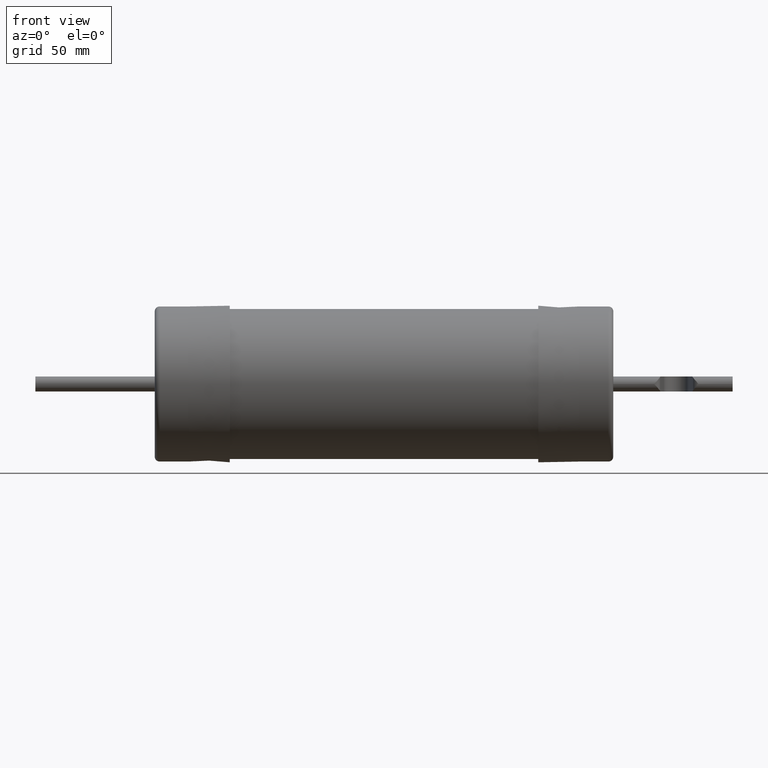
[diagram: clean part render]
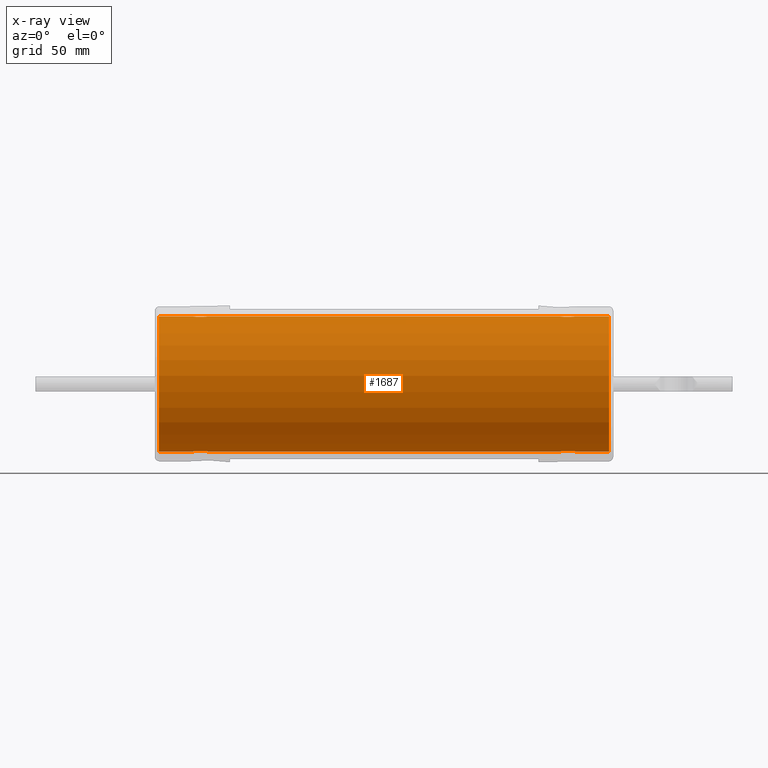
[diagram: x-ray — body ghosted, one internal face saturated and labeled with its STEP entity id]
A machine part, front view, then the same camera in x-ray: the body is ghosted and one INTERNAL B-rep face — a face not visible from any outside direction — is saturated and labeled: STEP entity #1687.
In plain terms, the highlighted cylindrical surface (bore or boss wall) has radius 28.575 mm, axis along (-1, -0, -0).
Its self-contained STEP definition (entity closure, byte-faithful):
#2 = CARTESIAN_POINT ( 'NONE',  ( 3.187000000000000300, 0.008264929551605784300, 1.125000000000000200 ) ) ;
#8 = CARTESIAN_POINT ( 'NONE',  ( 3.186999999999998900, 0.0000000000000000000, -1.125000000000000200 ) ) ;
#10 = CARTESIAN_POINT ( 'NONE',  ( -3.161355643792259000, 0.07628700763352130900, -1.122430944574689400 ) ) ;
#19 = CARTESIAN_POINT ( 'NONE',  ( 3.186188273916955800, 0.01643745976978575400, 1.124908949798906000 ) ) ;
#25 = CARTESIAN_POINT ( 'NONE',  ( 3.070145480266786000, -0.1250076555945823200, -1.118033132828778900 ) ) ;
#42 = CARTESIAN_POINT ( 'NONE',  ( 3.170486873554720000, 0.06262820716618042200, -1.123276015999122200 ) ) ;
#45 = CARTESIAN_POINT ( 'NONE',  ( -2.967859463995469800, -0.08263737611486492200, 1.121975691098800800 ) ) ;
#79 = CARTESIAN_POINT ( 'NONE',  ( -3.053854519733211900, 0.1250076555945823200, 1.118033132828778900 ) ) ;
#83 = ORIENTED_EDGE ( 'NONE', *, *, #484, .F. ) ;
#89 = CARTESIAN_POINT ( 'NONE',  ( -2.937000000000000700, 0.008264929551605784300, 1.125000000000000200 ) ) ;
#105 = CARTESIAN_POINT ( 'NONE',  ( -3.156187746755288300, -0.08259377650767590900, 1.121979270301073400 ) ) ;
#107 = CARTESIAN_POINT ( 'NONE',  ( -2.937000000000000300, 0.008264929551605789500, -1.125000000000000400 ) ) ;
#115 = EDGE_LOOP ( 'NONE', ( #4361 ) ) ;
#140 = CARTESIAN_POINT ( 'NONE',  ( 2.962604450216541600, -0.07624331799335301600, -1.122434334632148100 ) ) ;
#178 = CARTESIAN_POINT ( 'NONE',  ( 3.183009440676321000, 0.03237459969698097000, -1.124562487525537600 ) ) ;
#182 = CARTESIAN_POINT ( 'NONE',  ( -3.180620022544832900, -0.04025645766893276600, -1.124304730132168700 ) ) ;
#204 = CARTESIAN_POINT ( 'NONE',  ( -3.186175986786401900, -0.01649589605271852700, 1.124907613240619700 ) ) ;
#229 = CIRCLE ( 'NONE', #2546, 1.125000000000000200 ) ;
#234 = CARTESIAN_POINT ( 'NONE',  ( -3.102209569292360600, 0.1186394266720119400, -1.118731244855595500 ) ) ;
#271 = CARTESIAN_POINT ( 'NONE',  ( -3.006649359693871000, -0.1123763457502511300, -1.119377715608965500 ) ) ;
#287 = CARTESIAN_POINT ( 'NONE',  ( -2.937000000000000700, 2.667820306312757000E-018, -1.125000000000000400 ) ) ;
#288 = CARTESIAN_POINT ( 'NONE',  ( -2.979446898618952400, 0.09421448581475419500, 1.121062878079628800 ) ) ;
#303 = CARTESIAN_POINT ( 'NONE',  ( -3.094414638714150000, -0.1210005264207946200, 1.118475055215242300 ) ) ;
#316 = CARTESIAN_POINT ( 'NONE',  ( -2.953588908035345500, 0.06276584778618919700, 1.123268541818021300 ) ) ;
#318 = CARTESIAN_POINT ( 'NONE',  ( 2.949672628498397800, -0.05544975341774064500, 1.123658175103429800 ) ) ;
#319 = CARTESIAN_POINT ( 'NONE',  ( -2.937000000000000700, 2.667820306312757000E-018, -1.125000000000000400 ) ) ;
#340 = CARTESIAN_POINT ( 'NONE',  ( 3.144617473756183400, -0.09415800274281756200, 1.121067641967810100 ) ) ;
#374 = CARTESIAN_POINT ( 'NONE',  ( -2.953513126445280100, -0.06262820716618042200, 1.123276015999122200 ) ) ;
#382 = CARTESIAN_POINT ( 'NONE',  ( -3.174395605341360200, 0.05530388804176605800, 1.123665069559912000 ) ) ;
#400 = CARTESIAN_POINT ( 'NONE',  ( -3.144515552110087600, -0.09425628475918991500, 1.121059752058972000 ) ) ;
#408 = CARTESIAN_POINT ( 'NONE',  ( 3.117401467460331400, 0.1123473848063987500, -1.119380583587238800 ) ) ;
#415 = CARTESIAN_POINT ( 'NONE',  ( 2.999337395341455700, 0.1084650460285821300, -1.119768259758879400 ) ) ;
#455 = AXIS2_PLACEMENT_3D ( 'NONE', #2968, #2892, #1851 ) ;
#484 = EDGE_CURVE ( 'NONE', #3053, #3053, #3032, .T. ) ;
#515 = CARTESIAN_POINT ( 'NONE',  ( 3.138121789061683900, -0.09948446745432401600, -1.120601860584433000 ) ) ;
#541 = CARTESIAN_POINT ( 'NONE',  ( -3.174395605341360200, -0.05530388804176605800, -1.123665069559912000 ) ) ;
#558 = CARTESIAN_POINT ( 'NONE',  ( -3.182971074714431300, 0.03252367389140872100, -1.124558341550093000 ) ) ;
#565 = CARTESIAN_POINT ( 'NONE',  ( -2.962583939425441800, -0.07621116037932940100, 1.122436260767330400 ) ) ;
#572 = CARTESIAN_POINT ( 'NONE',  ( -3.070090097158386200, 0.1250044718708923100, -1.118033488779606200 ) ) ;
#575 = CARTESIAN_POINT ( 'NONE',  ( 3.102363490093071900, 0.1185834985868680100, -1.118737136081502800 ) ) ;
#612 = ORIENTED_EDGE ( 'NONE', *, *, #2975, .F. ) ;
#630 = CARTESIAN_POINT ( 'NONE',  ( -3.029734393478947100, -0.1210385460313865200, -1.118470922301289200 ) ) ;
#641 = CARTESIAN_POINT ( 'NONE',  ( -3.117549588859898100, 0.1122779461384894500, 1.119387625304711700 ) ) ;
#672 = CARTESIAN_POINT ( 'NONE',  ( 3.094480237569013700, 0.1209864652158193400, -1.118476592445989400 ) ) ;
#682 = CARTESIAN_POINT ( 'NONE',  ( -3.070090097158386200, -0.1250044718708923100, 1.118033488779606200 ) ) ;
#688 = CARTESIAN_POINT ( 'NONE',  ( 3.182955272507534500, 0.03259968580805224600, 1.124556621921092300 ) ) ;
#690 = CARTESIAN_POINT ( 'NONE',  ( 3.124667522529990500, -0.1084680400694198200, 1.119768163508242400 ) ) ;
#696 = CARTESIAN_POINT ( 'NONE',  ( 3.078278682987122500, -0.1242030735117622300, -1.118123933286968100 ) ) ;
#720 = CARTESIAN_POINT ( 'NONE',  ( 3.187000000000000300, -2.667820306312757000E-018, 1.125000000000000400 ) ) ;
#767 = CARTESIAN_POINT ( 'NONE',  ( -2.937000000000000700, -2.667820306312757000E-018, 1.125000000000000400 ) ) ;
#793 = CARTESIAN_POINT ( 'NONE',  ( 3.144617473756183400, 0.09415800274281756200, -1.121067641967810100 ) ) ;
#840 = EDGE_LOOP ( 'NONE', ( #4528 ) ) ;
#848 = CARTESIAN_POINT ( 'NONE',  ( 2.985798931559820800, -0.09942165458867963100, 1.120607405103259500 ) ) ;
#849 = CARTESIAN_POINT ( 'NONE',  ( -3.045657792958803300, 0.1241999310264740400, -1.118124317662409600 ) ) ;
#856 = CARTESIAN_POINT ( 'NONE',  ( 3.124531545484079400, -0.1085425808334890300, -1.119760776842968300 ) ) ;
#864 = CARTESIAN_POINT ( 'NONE',  ( 3.029585361285849200, -0.1210005264207946200, 1.118475055215242300 ) ) ;
#869 = CARTESIAN_POINT ( 'NONE',  ( 3.187000000000000300, 0.008264929551605789500, -1.125000000000000400 ) ) ;
#871 = CARTESIAN_POINT ( 'NONE',  ( 2.985798931559820800, 0.09942165458867963100, -1.120607405103259500 ) ) ;
#897 = CARTESIAN_POINT ( 'NONE',  ( -2.943452328758939400, 0.04046860805192440500, 1.124297064501512000 ) ) ;
#908 = EDGE_LOOP ( 'NONE', ( #2147 ) ) ;
#933 = CARTESIAN_POINT ( 'NONE',  ( -3.070378774219989700, -0.1249922355532565600, -1.118034856841049600 ) ) ;
#969 = EDGE_CURVE ( 'NONE', #2953, #2953, #3259, .T. ) ;
#1010 = CARTESIAN_POINT ( 'NONE',  ( -3.186175986786401900, 0.01649589605271852700, -1.124907613240619700 ) ) ;
#1027 = CARTESIAN_POINT ( 'NONE',  ( 3.045498057948743400, 0.1241735659675538800, 1.118127231060569700 ) ) ;
#1039 = CARTESIAN_POINT ( 'NONE',  ( -3.124662604658546200, -0.1084650460285821300, 1.119768259758879400 ) ) ;
#1043 = CARTESIAN_POINT ( 'NONE',  ( 2.943396375302103100, -0.04031493211041937300, 1.124302928876284000 ) ) ;
#1053 = CARTESIAN_POINT ( 'NONE',  ( 3.102363490093071900, -0.1185834985868680100, 1.118737136081502800 ) ) ;
#1057 = FACE_BOUND ( 'NONE', #3589, .T. ) ;
#1068 = CARTESIAN_POINT ( 'NONE',  ( 2.999277973686156300, -0.1084325161558754900, -1.119771485396767700 ) ) ;
#1082 = CARTESIAN_POINT ( 'NONE',  ( 3.750000000000000000, 0.0000000000000000000, -1.125000000000000200 ) ) ;
#1086 = CARTESIAN_POINT ( 'NONE',  ( 3.102207630603985400, -0.1186401403728588900, -1.118731169843065800 ) ) ;
#1095 = CARTESIAN_POINT ( 'NONE',  ( 3.174298166400745500, 0.05550117491882267100, 1.123655292813150900 ) ) ;
#1136 = CARTESIAN_POINT ( 'NONE',  ( -3.182971074714431300, -0.03252367389140872100, 1.124558341550093000 ) ) ;
#1165 = CYLINDRICAL_SURFACE ( 'NONE', #455, 1.125000000000000200 ) ;
#1170 = CARTESIAN_POINT ( 'NONE',  ( 2.953590289495580600, -0.06275815608667531500, 1.123268599542026800 ) ) ;
#1183 = CARTESIAN_POINT ( 'NONE',  ( -3.183017037297695600, 0.03236556164670054100, 1.124563291934886900 ) ) ;
#1188 = CARTESIAN_POINT ( 'NONE',  ( -3.186214616297747600, 0.01622904787785724200, 1.124911883283803900 ) ) ;
#1191 = CARTESIAN_POINT ( 'NONE',  ( -3.078501942051257200, -0.1241735659675538800, -1.118127231060569700 ) ) ;
#1196 = CARTESIAN_POINT ( 'NONE',  ( 2.962644356207739400, -0.07628700763352130900, 1.122430944574689400 ) ) ;
#1231 = CARTESIAN_POINT ( 'NONE',  ( 3.187000000000000300, 2.667820306312757000E-018, -1.125000000000000400 ) ) ;
#1262 = CARTESIAN_POINT ( 'NONE',  ( 2.943396375302103100, 0.04031493211041937300, -1.124302928876284000 ) ) ;
#1291 = CARTESIAN_POINT ( 'NONE',  ( -3.117351000547919700, -0.1123761085021413000, 1.119377738752709700 ) ) ;
#1329 = CARTESIAN_POINT ( 'NONE',  ( 2.979283227754908400, 0.09407087198512108200, 1.121074991900731700 ) ) ;
#1331 = B_SPLINE_CURVE_WITH_KNOTS ( 'NONE', 3,
 ( #2214, #3217, #2639, #4081, #2272, #1380, #374, #565, #45, #1458, #3706, #3827, #2496, #2973, #4398, #3086, #2746, #682, #2757, #303, #3136, #1291, #1039, #4551, #400, #105, #2455, #2670, #3749, #4512, #1136, #204, #2243, #2601, #1188, #1183, #4387, #382, #1829, #1964, #2697, #3216, #2344, #4214, #641, #2276, #3025, #2049, #2226, #79, #1715, #2373, #3246, #3786, #4519, #2716, #288, #1675, #4442, #316, #3052, #897, #3886, #3872, #89, #767 ),
 .UNSPECIFIED., .T., .F.,
 ( 4, 2, 2, 2, 2, 2, 2, 2, 2, 2, 2, 2, 2, 2, 2, 2, 2, 2, 2, 2, 2, 2, 2, 2, 2, 2, 2, 2, 2, 2, 2, 2, 4 ),
 ( 0.0000000000000000000, 0.0006208117446907428600, 0.001241623489381485700, 0.001862435234072228800, 0.002483246978762971400, 0.003104058723453714300, 0.003724870468144457600, 0.004345682212835200000, 0.004966493957525942900, 0.005587305702216685700, 0.006208117446907428600, 0.006828929191598171400, 0.007449740936288915200, 0.008070552680979656300, 0.008691364425670398300, 0.009312176170361140300, 0.009932987915051882200, 0.01055379965974262400, 0.01117461140443336800, 0.01179542314912411000, 0.01241623489381485200, 0.01303704663850559600, 0.01365785838319633800, 0.01427867012788708100, 0.01489948187257782300, 0.01552029361726856900, 0.01614110536195931300, 0.01676191710665005500, 0.01738272885134079700, 0.01800354059603153900, 0.01862435234072228400, 0.01924516408541302600, 0.01986597583010376800 ),
 .UNSPECIFIED. ) ;
#1351 = CARTESIAN_POINT ( 'NONE',  ( 3.186188273916955800, -0.01643745976978575400, -1.124908949798906000 ) ) ;
#1365 = CARTESIAN_POINT ( 'NONE',  ( 2.943379977455168600, -0.04025645766893276600, -1.124304730132168700 ) ) ;
#1367 = CARTESIAN_POINT ( 'NONE',  ( -2.937811628267242200, 0.01639047786679385900, -1.124908998670764800 ) ) ;
#1379 = CARTESIAN_POINT ( 'NONE',  ( 3.187000000000000300, -0.008264929551605789500, 1.125000000000000400 ) ) ;
#1380 = CARTESIAN_POINT ( 'NONE',  ( -2.949673288195073800, -0.05545107790090389500, 1.123658108980761800 ) ) ;
#1396 = CARTESIAN_POINT ( 'NONE',  ( 3.186188371732759300, -0.01639047786679385900, 1.124908998670764800 ) ) ;
#1409 = CARTESIAN_POINT ( 'NONE',  ( 3.078342207041195900, -0.1241999310264740400, 1.118124317662409600 ) ) ;
#1452 = CARTESIAN_POINT ( 'NONE',  ( 3.174298166400745500, -0.05550117491882267100, -1.123655292813150900 ) ) ;
#1458 = CARTESIAN_POINT ( 'NONE',  ( -2.979382526243816700, -0.09415800274281756200, 1.121067641967810100 ) ) ;
#1505 = CARTESIAN_POINT ( 'NONE',  ( -3.750000000000000000, 0.0000000000000000000, -1.125000000000000200 ) ) ;
#1552 = CARTESIAN_POINT ( 'NONE',  ( -3.053772298338016900, 0.1249954902591058300, -1.118034492954178300 ) ) ;
#1601 = CARTESIAN_POINT ( 'NONE',  ( 2.953590289495580600, 0.06275815608667531500, -1.123268599542026800 ) ) ;
#1620 = CARTESIAN_POINT ( 'NONE',  ( 2.999277973686156300, 0.1084325161558754900, 1.119771485396767700 ) ) ;
#1628 = CARTESIAN_POINT ( 'NONE',  ( -3.161395549783457600, -0.07624331799335301600, -1.122434334632148100 ) ) ;
#1655 = CARTESIAN_POINT ( 'NONE',  ( 3.144553101381046400, -0.09421448581475419500, -1.121062878079628800 ) ) ;
#1667 = DIRECTION ( 'NONE',  ( 0.0000000000000000000, 0.0000000000000000000, -1.000000000000000000 ) ) ;
#1675 = CARTESIAN_POINT ( 'NONE',  ( -2.967915358897446500, 0.08270105315878084600, 1.121970980797608200 ) ) ;
#1682 = CARTESIAN_POINT ( 'NONE',  ( 2.937824013213596000, -0.01649589605271852700, 1.124907613240619700 ) ) ;
#1683 = CARTESIAN_POINT ( 'NONE',  ( 2.962644356207739400, 0.07628700763352130900, -1.122430944574689400 ) ) ;
#1687 = ADVANCED_FACE ( 'NONE', ( #3705, #1975, #1057, #4144, #4306, #4004 ), #1165, .F. ) ;
#1713 = CARTESIAN_POINT ( 'NONE',  ( -3.078378397059466900, 0.1241917239869099700, -1.118125213125081600 ) ) ;
#1715 = CARTESIAN_POINT ( 'NONE',  ( -3.045721317012878500, 0.1242030735117622300, 1.118123933286968100 ) ) ;
#1717 = CARTESIAN_POINT ( 'NONE',  ( -3.138294112541330200, -0.09935225984515794200, -1.120613634814085800 ) ) ;
#1727 = CARTESIAN_POINT ( 'NONE',  ( 3.180603091870879400, -0.04031648327851774400, 1.124302872492393400 ) ) ;
#1741 = CARTESIAN_POINT ( 'NONE',  ( 3.053909902841613500, -0.1250044718708923100, 1.118033488779606200 ) ) ;
#1767 = CARTESIAN_POINT ( 'NONE',  ( 3.124531545484079400, 0.1085425808334890300, 1.119760776842968300 ) ) ;
#1773 = CARTESIAN_POINT ( 'NONE',  ( 2.937785383702250700, -0.01622904787785724200, -1.124911883283803900 ) ) ;
#1818 = CARTESIAN_POINT ( 'NONE',  ( 3.006450411140102000, -0.1122779461384894500, -1.119387625304711700 ) ) ;
#1821 = CARTESIAN_POINT ( 'NONE',  ( 2.979283227754908400, -0.09407087198512108200, -1.121074991900731700 ) ) ;
#1829 = CARTESIAN_POINT ( 'NONE',  ( -3.170520943791493600, 0.06257574301592348800, 1.123279197477526000 ) ) ;
#1850 = CARTESIAN_POINT ( 'NONE',  ( 3.187000000000000300, -0.008264929551605784300, -1.125000000000000200 ) ) ;
#1851 = DIRECTION ( 'NONE',  ( 0.0000000000000000000, 0.0000000000000000000, 1.000000000000000000 ) ) ;
#1892 = CARTESIAN_POINT ( 'NONE',  ( -2.979446898618952400, -0.09421448581475419500, -1.121062878079628800 ) ) ;
#1920 = CARTESIAN_POINT ( 'NONE',  ( -3.187003016740611400, -0.008114145681554373400, -1.125000335193378800 ) ) ;
#1923 = CARTESIAN_POINT ( 'NONE',  ( 3.170411091964654600, -0.06276584778618919700, -1.123268541818021300 ) ) ;
#1933 = CARTESIAN_POINT ( 'NONE',  ( -3.170409710504420000, 0.06275815608667531500, -1.123268599542026800 ) ) ;
#1948 = CARTESIAN_POINT ( 'NONE',  ( -3.102422616253030600, -0.1185668845286975100, -1.118738971685333300 ) ) ;
#1964 = CARTESIAN_POINT ( 'NONE',  ( -3.161395549783457600, 0.07624331799335301600, 1.122434334632148100 ) ) ;
#1975 = FACE_BOUND ( 'NONE', #840, .T. ) ;
#2019 = CARTESIAN_POINT ( 'NONE',  ( 2.937003033920624300, -0.008206827971039441400, 1.124999662897731500 ) ) ;
#2049 = CARTESIAN_POINT ( 'NONE',  ( -3.078501942051257200, 0.1241735659675538800, 1.118127231060569700 ) ) ;
#2054 = CARTESIAN_POINT ( 'NONE',  ( -3.053854519733211900, -0.1250076555945823200, -1.118033132828778900 ) ) ;
#2064 = CARTESIAN_POINT ( 'NONE',  ( 3.170486873554720000, -0.06262820716618042200, 1.123276015999122200 ) ) ;
#2104 = CARTESIAN_POINT ( 'NONE',  ( 3.117350640306127300, 0.1123763457502511300, 1.119377715608965500 ) ) ;
#2147 = ORIENTED_EDGE ( 'NONE', *, *, #4068, .T. ) ;
#2214 = CARTESIAN_POINT ( 'NONE',  ( -2.937000000000000700, -2.667820306312757000E-018, 1.125000000000000400 ) ) ;
#2221 = CARTESIAN_POINT ( 'NONE',  ( -2.967915358897446500, -0.08270105315878084600, -1.121970980797608200 ) ) ;
#2222 = VERTEX_POINT ( 'NONE', #8 ) ;
#2226 = CARTESIAN_POINT ( 'NONE',  ( -3.070378774219989700, 0.1249922355532565600, 1.118034856841049600 ) ) ;
#2243 = CARTESIAN_POINT ( 'NONE',  ( -3.186996966079376200, -0.008206827971039441400, 1.124999662897731500 ) ) ;
#2251 = CARTESIAN_POINT ( 'NONE',  ( -2.949701833599254600, -0.05550117491882267100, -1.123655292813150900 ) ) ;
#2255 = CARTESIAN_POINT ( 'NONE',  ( -3.186214616297747600, -0.01622904787785724200, -1.124911883283803900 ) ) ;
#2259 = CARTESIAN_POINT ( 'NONE',  ( 3.029585361285849200, 0.1210005264207946200, -1.118475055215242300 ) ) ;
#2260 = CARTESIAN_POINT ( 'NONE',  ( 3.174326711804925900, 0.05545107790090389500, -1.123658108980761800 ) ) ;
#2267 = VERTEX_POINT ( 'NONE', #1082 ) ;
#2272 = CARTESIAN_POINT ( 'NONE',  ( -2.943396908129121600, -0.04031648327851774400, 1.124302872492393400 ) ) ;
#2273 = CARTESIAN_POINT ( 'NONE',  ( -3.174327371501600900, 0.05544975341774064500, -1.123658175103429800 ) ) ;
#2276 = CARTESIAN_POINT ( 'NONE',  ( -3.102422616253030600, 0.1185668845286975100, 1.118738971685333300 ) ) ;
#2293 = CARTESIAN_POINT ( 'NONE',  ( 3.124667522529990500, 0.1084680400694198200, -1.119768163508242400 ) ) ;
#2338 = CARTESIAN_POINT ( 'NONE',  ( 2.985705887458671700, 0.09935225984515794200, 1.120613634814085800 ) ) ;
#2344 = CARTESIAN_POINT ( 'NONE',  ( -3.138294112541330200, 0.09935225984515794200, 1.120613634814085800 ) ) ;
#2346 = VERTEX_POINT ( 'NONE', #4047 ) ;
#2357 = CARTESIAN_POINT ( 'NONE',  ( 2.936996983259390500, 0.008114145681554373400, 1.125000335193378800 ) ) ;
#2373 = CARTESIAN_POINT ( 'NONE',  ( -3.029734393478947100, 0.1210385460313865200, 1.118470922301289200 ) ) ;
#2403 = CARTESIAN_POINT ( 'NONE',  ( 3.156140536004529800, -0.08263737611486492200, 1.121975691098800800 ) ) ;
#2441 = DIRECTION ( 'NONE',  ( 1.000000000000000000, 0.0000000000000000000, 0.0000000000000000000 ) ) ;
#2455 = CARTESIAN_POINT ( 'NONE',  ( -3.161355643792259000, -0.07628700763352130900, 1.122430944574689400 ) ) ;
#2465 = CARTESIAN_POINT ( 'NONE',  ( 3.138328849812721500, 0.09932995914030730300, -1.120615730275239500 ) ) ;
#2475 = CARTESIAN_POINT ( 'NONE',  ( 2.949672628498397800, 0.05544975341774064500, -1.123658175103429800 ) ) ;
#2483 = CARTESIAN_POINT ( 'NONE',  ( 3.006648999452078600, -0.1123761085021413000, 1.119377738752709700 ) ) ;
#2496 = CARTESIAN_POINT ( 'NONE',  ( -3.006598532539668700, -0.1123473848063987500, 1.119380583587238800 ) ) ;
#2510 = CARTESIAN_POINT ( 'NONE',  ( 3.161261931181646600, -0.07641718083898263500, -1.122422461980748800 ) ) ;
#2546 = AXIS2_PLACEMENT_3D ( 'NONE', #3153, #2441, #1667 ) ;
#2574 = CARTESIAN_POINT ( 'NONE',  ( -2.962738068818352700, -0.07641718083898263500, -1.122422461980748800 ) ) ;
#2579 = CARTESIAN_POINT ( 'NONE',  ( 3.006648999452078600, 0.1123761085021413000, -1.119377738752709700 ) ) ;
#2587 = VERTEX_POINT ( 'NONE', #1505 ) ;
#2593 = CARTESIAN_POINT ( 'NONE',  ( 2.949604394658639000, -0.05530388804176605800, -1.123665069559912000 ) ) ;
#2595 = CARTESIAN_POINT ( 'NONE',  ( -2.937811726083044700, -0.01643745976978575400, -1.124908949798906000 ) ) ;
#2601 = CARTESIAN_POINT ( 'NONE',  ( -3.187003016740611400, 0.008114145681554373400, 1.125000335193378800 ) ) ;
#2631 = CARTESIAN_POINT ( 'NONE',  ( -3.180603624697897000, 0.04031493211041937300, -1.124302928876284000 ) ) ;
#2639 = CARTESIAN_POINT ( 'NONE',  ( -2.937811628267242200, -0.01639047786679385900, 1.124908998670764800 ) ) ;
#2649 = CARTESIAN_POINT ( 'NONE',  ( -2.943396908129121600, 0.04031648327851774400, -1.124302872492393400 ) ) ;
#2654 = CARTESIAN_POINT ( 'NONE',  ( 3.078342207041195900, 0.1241999310264740400, -1.118124317662409600 ) ) ;
#2667 = CARTESIAN_POINT ( 'NONE',  ( -3.170520943791493600, -0.06257574301592348800, -1.123279197477526000 ) ) ;
#2670 = CARTESIAN_POINT ( 'NONE',  ( -3.170409710504420000, -0.06275815608667531500, 1.123268599542026800 ) ) ;
#2673 = CARTESIAN_POINT ( 'NONE',  ( 2.962604450216541600, 0.07624331799335301600, 1.122434334632148100 ) ) ;
#2697 = CARTESIAN_POINT ( 'NONE',  ( -3.156229049655611800, 0.08253653474484809500, 1.121983149095198400 ) ) ;
#2712 = CARTESIAN_POINT ( 'NONE',  ( -2.999332477470008800, 0.1084680400694198200, -1.119768163508242400 ) ) ;
#2716 = CARTESIAN_POINT ( 'NONE',  ( -2.985878210938316600, 0.09948446745432401600, 1.120601860584433000 ) ) ;
#2722 = CARTESIAN_POINT ( 'NONE',  ( 2.937785383702250700, 0.01622904787785724200, 1.124911883283803900 ) ) ;
#2725 = CARTESIAN_POINT ( 'NONE',  ( 2.936996983259390500, -0.008114145681554373400, -1.125000335193378800 ) ) ;
#2730 = CARTESIAN_POINT ( 'NONE',  ( -2.940990559323680000, 0.03237459969698097000, -1.124562487525537600 ) ) ;
#2734 = CARTESIAN_POINT ( 'NONE',  ( 3.053621225780008600, 0.1249922355532565600, 1.118034856841049600 ) ) ;
#2746 = CARTESIAN_POINT ( 'NONE',  ( -3.053772298338016900, -0.1249954902591058300, 1.118034492954178300 ) ) ;
#2757 = CARTESIAN_POINT ( 'NONE',  ( -3.078378397059466900, -0.1241917239869099700, 1.118125213125081600 ) ) ;
#2758 = DIRECTION ( 'NONE',  ( 1.000000000000000000, 0.0000000000000000000, 0.0000000000000000000 ) ) ;
#2759 = CARTESIAN_POINT ( 'NONE',  ( -2.999468454515920700, -0.1085425808334890300, -1.119760776842968300 ) ) ;
#2761 = CARTESIAN_POINT ( 'NONE',  ( 3.029518086321459700, 0.1209806342368128000, 1.118477208289883700 ) ) ;
#2774 = CARTESIAN_POINT ( 'NONE',  ( 3.138328849812721500, -0.09932995914030730300, 1.120615730275239500 ) ) ;
#2783 = CARTESIAN_POINT ( 'NONE',  ( -2.985671150187279000, 0.09932995914030730300, -1.120615730275239500 ) ) ;
#2789 = CARTESIAN_POINT ( 'NONE',  ( 3.102207630603985400, 0.1186401403728588900, 1.118731169843065800 ) ) ;
#2817 = CARTESIAN_POINT ( 'NONE',  ( 3.180547671241061200, 0.04046860805192440500, 1.124297064501512000 ) ) ;
#2842 = CARTESIAN_POINT ( 'NONE',  ( 3.161416060574555200, 0.07621116037932940100, -1.122436260767330400 ) ) ;
#2869 = CARTESIAN_POINT ( 'NONE',  ( 3.156084641102553600, -0.08270105315878084600, -1.121970980797608200 ) ) ;
#2885 = CARTESIAN_POINT ( 'NONE',  ( 3.045498057948743400, -0.1241735659675538800, -1.118127231060569700 ) ) ;
#2892 = DIRECTION ( 'NONE',  ( -1.000000000000000000, -0.0000000000000000000, -0.0000000000000000000 ) ) ;
#2924 = CARTESIAN_POINT ( 'NONE',  ( 2.967812253244712700, -0.08259377650767590900, 1.121979270301073400 ) ) ;
#2939 = CARTESIAN_POINT ( 'NONE',  ( 2.999337395341455700, -0.1084650460285821300, 1.119768259758879400 ) ) ;
#2948 = CARTESIAN_POINT ( 'NONE',  ( 3.070227701661984100, 0.1249954902591058300, -1.118034492954178300 ) ) ;
#2953 = VERTEX_POINT ( 'NONE', #4486 ) ;
#2957 = CARTESIAN_POINT ( 'NONE',  ( 2.985705887458671700, -0.09935225984515794200, -1.120613634814085800 ) ) ;
#2968 = CARTESIAN_POINT ( 'NONE',  ( 3.750000000000000000, 0.0000000000000000000, 0.0000000000000000000 ) ) ;
#2969 = CARTESIAN_POINT ( 'NONE',  ( -2.937000000000000700, -0.008264929551605784300, -1.125000000000000200 ) ) ;
#2973 = CARTESIAN_POINT ( 'NONE',  ( -3.021636509906927300, -0.1185834985868680100, 1.118737136081502800 ) ) ;
#2975 = EDGE_CURVE ( 'NONE', #2587, #2587, #4392, .T. ) ;
#2988 = CARTESIAN_POINT ( 'NONE',  ( -3.183017037297695600, -0.03236556164670054100, -1.124563291934886900 ) ) ;
#3010 = CARTESIAN_POINT ( 'NONE',  ( 3.021790430707639100, -0.1186394266720119400, 1.118731244855595500 ) ) ;
#3011 = CARTESIAN_POINT ( 'NONE',  ( -3.117549588859898100, -0.1122779461384894500, -1.119387625304711700 ) ) ;
#3025 = CARTESIAN_POINT ( 'NONE',  ( -3.094481913678536900, 0.1209806342368128000, 1.118477208289883700 ) ) ;
#3032 = B_SPLINE_CURVE_WITH_KNOTS ( 'NONE', 3,
 ( #319, #107, #1367, #2730, #2649, #3657, #3868, #4042, #4533, #4450, #2783, #2712, #3050, #3142, #3328, #849, #1552, #572, #1713, #4438, #234, #3738, #3095, #3610, #3691, #3800, #10, #1933, #2273, #2631, #558, #1010, #3413, #1920, #2255, #2988, #182, #541, #2667, #1628, #3727, #4168, #1717, #4257, #3011, #1948, #4305, #1191, #933, #2054, #3362, #630, #3759, #271, #2759, #3430, #1892, #2221, #2574, #4472, #2251, #3155, #4003, #2595, #2969, #287 ),
 .UNSPECIFIED., .T., .F.,
 ( 4, 2, 2, 2, 2, 2, 2, 2, 2, 2, 2, 2, 2, 2, 2, 2, 2, 2, 2, 2, 2, 2, 2, 2, 2, 2, 2, 2, 2, 2, 2, 2, 4 ),
 ( 0.0000000000000000000, 0.0006208117446907428600, 0.001241623489381485700, 0.001862435234072228800, 0.002483246978762971400, 0.003104058723453714300, 0.003724870468144457600, 0.004345682212835200000, 0.004966493957525942900, 0.005587305702216685700, 0.006208117446907428600, 0.006828929191598171400, 0.007449740936288915200, 0.008070552680979656300, 0.008691364425670398300, 0.009312176170361140300, 0.009932987915051882200, 0.01055379965974262400, 0.01117461140443336800, 0.01179542314912411000, 0.01241623489381485200, 0.01303704663850559600, 0.01365785838319633800, 0.01427867012788708100, 0.01489948187257782300, 0.01552029361726856900, 0.01614110536195931300, 0.01676191710665005500, 0.01738272885134079700, 0.01800354059603153900, 0.01862435234072228400, 0.01924516408541302600, 0.01986597583010376800 ),
 .UNSPECIFIED. ) ;
#3037 = CARTESIAN_POINT ( 'NONE',  ( 2.940982962702303200, 0.03236556164670054100, 1.124563291934886900 ) ) ;
#3050 = CARTESIAN_POINT ( 'NONE',  ( -3.006598532539668700, 0.1123473848063987500, -1.119380583587238800 ) ) ;
#3052 = CARTESIAN_POINT ( 'NONE',  ( -2.949701833599254600, 0.05550117491882267100, 1.123655292813150900 ) ) ;
#3053 = VERTEX_POINT ( 'NONE', #3582 ) ;
#3086 = CARTESIAN_POINT ( 'NONE',  ( -3.045657792958803300, -0.1241999310264740400, 1.118124317662409600 ) ) ;
#3095 = CARTESIAN_POINT ( 'NONE',  ( -3.124662604658546200, 0.1084650460285821300, -1.119768259758879400 ) ) ;
#3106 = CARTESIAN_POINT ( 'NONE',  ( 2.940982962702303200, -0.03236556164670054100, -1.124563291934886900 ) ) ;
#3136 = CARTESIAN_POINT ( 'NONE',  ( -3.102209569292360600, -0.1186394266720119400, 1.118731244855595500 ) ) ;
#3142 = CARTESIAN_POINT ( 'NONE',  ( -3.021636509906927300, 0.1185834985868680100, -1.118737136081502800 ) ) ;
#3144 = CARTESIAN_POINT ( 'NONE',  ( 3.161261931181646600, 0.07641718083898263500, 1.122422461980748800 ) ) ;
#3148 = CARTESIAN_POINT ( 'NONE',  ( 3.117401467460331400, -0.1123473848063987500, 1.119380583587238800 ) ) ;
#3153 = CARTESIAN_POINT ( 'NONE',  ( 3.750000000000000000, 0.0000000000000000000, 0.0000000000000000000 ) ) ;
#3155 = CARTESIAN_POINT ( 'NONE',  ( -2.943452328758939400, -0.04046860805192440500, -1.124297064501512000 ) ) ;
#3160 = CARTESIAN_POINT ( 'NONE',  ( 3.094265606521052100, 0.1210385460313865200, 1.118470922301289200 ) ) ;
#3207 = CARTESIAN_POINT ( 'NONE',  ( 2.979484447889911600, 0.09425628475918991500, -1.121059752058972000 ) ) ;
#3216 = CARTESIAN_POINT ( 'NONE',  ( -3.144716772245090800, 0.09407087198512108200, 1.121074991900731700 ) ) ;
#3217 = CARTESIAN_POINT ( 'NONE',  ( -2.937000000000000300, -0.008264929551605789500, 1.125000000000000400 ) ) ;
#3239 = CARTESIAN_POINT ( 'NONE',  ( 3.156140536004529800, 0.08263737611486492200, -1.121975691098800800 ) ) ;
#3246 = CARTESIAN_POINT ( 'NONE',  ( -3.021792369396013400, 0.1186401403728588900, 1.118731169843065800 ) ) ;
#3259 = B_SPLINE_CURVE_WITH_KNOTS ( 'NONE', 3,
 ( #4156, #1379, #1396, #3824, #1727, #4177, #2064, #4538, #2403, #340, #2774, #690, #3148, #1053, #3498, #1409, #3839, #1741, #3288, #864, #3010, #2483, #2939, #848, #3951, #2924, #1196, #1170, #318, #1043, #3441, #1682, #2019, #2357, #2722, #3037, #3387, #3734, #4445, #2673, #3405, #1329, #2338, #1620, #4494, #4064, #2761, #1027, #2734, #3463, #3508, #3160, #2789, #2104, #1767, #3516, #4171, #3479, #3144, #3875, #1095, #2817, #688, #19, #2, #720 ),
 .UNSPECIFIED., .T., .F.,
 ( 4, 2, 2, 2, 2, 2, 2, 2, 2, 2, 2, 2, 2, 2, 2, 2, 2, 2, 2, 2, 2, 2, 2, 2, 2, 2, 2, 2, 2, 2, 2, 2, 4 ),
 ( 0.0000000000000000000, 0.0006208117446907428600, 0.001241623489381485700, 0.001862435234072228800, 0.002483246978762971400, 0.003104058723453714300, 0.003724870468144457600, 0.004345682212835200000, 0.004966493957525942900, 0.005587305702216685700, 0.006208117446907428600, 0.006828929191598171400, 0.007449740936288915200, 0.008070552680979656300, 0.008691364425670398300, 0.009312176170361140300, 0.009932987915051882200, 0.01055379965974262400, 0.01117461140443336800, 0.01179542314912411000, 0.01241623489381485200, 0.01303704663850559600, 0.01365785838319633800, 0.01427867012788708100, 0.01489948187257782300, 0.01552029361726856900, 0.01614110536195931300, 0.01676191710665005500, 0.01738272885134079700, 0.01800354059603153900, 0.01862435234072228400, 0.01924516408541302600, 0.01986597583010376800 ),
 .UNSPECIFIED. ) ;
#3288 = CARTESIAN_POINT ( 'NONE',  ( 3.045621602940535400, -0.1241917239869099700, 1.118125213125081600 ) ) ;
#3328 = CARTESIAN_POINT ( 'NONE',  ( -3.029519762430987300, 0.1209864652158193400, -1.118476592445989400 ) ) ;
#3334 = CARTESIAN_POINT ( 'NONE',  ( 3.053621225780008600, -0.1249922355532565600, -1.118034856841049600 ) ) ;
#3362 = CARTESIAN_POINT ( 'NONE',  ( -3.045721317012878500, -0.1242030735117622300, -1.118123933286968100 ) ) ;
#3387 = CARTESIAN_POINT ( 'NONE',  ( 2.943379977455168600, 0.04025645766893276600, 1.124304730132168700 ) ) ;
#3405 = CARTESIAN_POINT ( 'NONE',  ( 2.967770950344387400, 0.08253653474484809500, 1.121983149095198400 ) ) ;
#3413 = CARTESIAN_POINT ( 'NONE',  ( -3.186996966079376200, 0.008206827971039441400, -1.124999662897731500 ) ) ;
#3428 = B_SPLINE_CURVE_WITH_KNOTS ( 'NONE', 3,
 ( #1231, #869, #4148, #178, #3970, #2260, #42, #2842, #3239, #793, #2465, #2293, #408, #575, #672, #2654, #2948, #3558, #3795, #2259, #4236, #2579, #415, #871, #3207, #3660, #1683, #1601, #2475, #1262, #3986, #3680, #4287, #2725, #1773, #3106, #1365, #2593, #3587, #140, #3571, #1821, #2957, #1068, #1818, #4542, #3782, #2885, #3334, #25, #696, #3524, #1086, #3545, #856, #515, #1655, #2869, #2510, #1923, #1452, #3923, #4182, #1351, #1850, #4073 ),
 .UNSPECIFIED., .T., .F.,
 ( 4, 2, 2, 2, 2, 2, 2, 2, 2, 2, 2, 2, 2, 2, 2, 2, 2, 2, 2, 2, 2, 2, 2, 2, 2, 2, 2, 2, 2, 2, 2, 2, 4 ),
 ( 0.0000000000000000000, 0.0006208117446907428600, 0.001241623489381485700, 0.001862435234072228800, 0.002483246978762971400, 0.003104058723453714300, 0.003724870468144457600, 0.004345682212835200000, 0.004966493957525942900, 0.005587305702216685700, 0.006208117446907428600, 0.006828929191598171400, 0.007449740936288915200, 0.008070552680979656300, 0.008691364425670398300, 0.009312176170361140300, 0.009932987915051882200, 0.01055379965974262400, 0.01117461140443336800, 0.01179542314912411000, 0.01241623489381485200, 0.01303704663850559600, 0.01365785838319633800, 0.01427867012788708100, 0.01489948187257782300, 0.01552029361726856900, 0.01614110536195931300, 0.01676191710665005500, 0.01738272885134079700, 0.01800354059603153900, 0.01862435234072228400, 0.01924516408541302600, 0.01986597583010376800 ),
 .UNSPECIFIED. ) ;
#3430 = CARTESIAN_POINT ( 'NONE',  ( -2.985878210938316600, -0.09948446745432401600, -1.120601860584433000 ) ) ;
#3441 = CARTESIAN_POINT ( 'NONE',  ( 2.941028925285568400, -0.03252367389140872100, 1.124558341550093000 ) ) ;
#3463 = CARTESIAN_POINT ( 'NONE',  ( 3.070145480266786000, 0.1250076555945823200, 1.118033132828778900 ) ) ;
#3479 = CARTESIAN_POINT ( 'NONE',  ( 3.156084641102553600, 0.08270105315878084600, 1.121970980797608200 ) ) ;
#3498 = CARTESIAN_POINT ( 'NONE',  ( 3.094480237569013700, -0.1209864652158193400, 1.118476592445989400 ) ) ;
#3508 = CARTESIAN_POINT ( 'NONE',  ( 3.078278682987122500, 0.1242030735117622300, 1.118123933286968100 ) ) ;
#3516 = CARTESIAN_POINT ( 'NONE',  ( 3.138121789061683900, 0.09948446745432401600, 1.120601860584433000 ) ) ;
#3524 = CARTESIAN_POINT ( 'NONE',  ( 3.094265606521052100, -0.1210385460313865200, -1.118470922301289200 ) ) ;
#3545 = CARTESIAN_POINT ( 'NONE',  ( 3.117350640306127300, -0.1123763457502511300, -1.119377715608965500 ) ) ;
#3558 = CARTESIAN_POINT ( 'NONE',  ( 3.053909902841613500, 0.1250044718708923100, -1.118033488779606200 ) ) ;
#3571 = CARTESIAN_POINT ( 'NONE',  ( 2.967770950344387400, -0.08253653474484809500, -1.121983149095198400 ) ) ;
#3580 = EDGE_CURVE ( 'NONE', #2346, #2346, #1331, .T. ) ;
#3582 = CARTESIAN_POINT ( 'NONE',  ( -2.937000000000000300, 0.0000000000000000000, -1.125000000000000200 ) ) ;
#3587 = CARTESIAN_POINT ( 'NONE',  ( 2.953479056208507400, -0.06257574301592348800, -1.123279197477526000 ) ) ;
#3589 = EDGE_LOOP ( 'NONE', ( #4199 ) ) ;
#3598 = CARTESIAN_POINT ( 'NONE',  ( -3.750000000000000000, 0.0000000000000000000, 0.0000000000000000000 ) ) ;
#3599 = EDGE_LOOP ( 'NONE', ( #83 ) ) ;
#3610 = CARTESIAN_POINT ( 'NONE',  ( -3.138201068440179300, 0.09942165458867963100, -1.120607405103259500 ) ) ;
#3657 = CARTESIAN_POINT ( 'NONE',  ( -2.949673288195073800, 0.05545107790090389500, -1.123658108980761800 ) ) ;
#3660 = CARTESIAN_POINT ( 'NONE',  ( 2.967812253244712700, 0.08259377650767590900, -1.121979270301073400 ) ) ;
#3680 = CARTESIAN_POINT ( 'NONE',  ( 2.937824013213596000, 0.01649589605271852700, -1.124907613240619700 ) ) ;
#3691 = CARTESIAN_POINT ( 'NONE',  ( -3.144515552110087600, 0.09425628475918991500, -1.121059752058972000 ) ) ;
#3705 = FACE_BOUND ( 'NONE', #115, .T. ) ;
#3706 = CARTESIAN_POINT ( 'NONE',  ( -2.985671150187279000, -0.09932995914030730300, 1.120615730275239500 ) ) ;
#3727 = CARTESIAN_POINT ( 'NONE',  ( -3.156229049655611800, -0.08253653474484809500, -1.121983149095198400 ) ) ;
#3734 = CARTESIAN_POINT ( 'NONE',  ( 2.949604394658639000, 0.05530388804176605800, 1.123665069559912000 ) ) ;
#3738 = CARTESIAN_POINT ( 'NONE',  ( -3.117351000547919700, 0.1123761085021413000, -1.119377738752709700 ) ) ;
#3749 = CARTESIAN_POINT ( 'NONE',  ( -3.174327371501600900, -0.05544975341774064500, 1.123658175103429800 ) ) ;
#3759 = CARTESIAN_POINT ( 'NONE',  ( -3.021792369396013400, -0.1186401403728588900, -1.118731169843065800 ) ) ;
#3778 = AXIS2_PLACEMENT_3D ( 'NONE', #3598, #2758, #4563 ) ;
#3782 = CARTESIAN_POINT ( 'NONE',  ( 3.029518086321459700, -0.1209806342368128000, -1.118477208289883700 ) ) ;
#3786 = CARTESIAN_POINT ( 'NONE',  ( -3.006649359693871000, 0.1123763457502511300, 1.119377715608965500 ) ) ;
#3795 = CARTESIAN_POINT ( 'NONE',  ( 3.045621602940535400, 0.1241917239869099700, -1.118125213125081600 ) ) ;
#3800 = CARTESIAN_POINT ( 'NONE',  ( -3.156187746755288300, 0.08259377650767590900, -1.121979270301073400 ) ) ;
#3824 = CARTESIAN_POINT ( 'NONE',  ( 3.183009440676321000, -0.03237459969698097000, 1.124562487525537600 ) ) ;
#3827 = CARTESIAN_POINT ( 'NONE',  ( -2.999332477470008800, -0.1084680400694198200, 1.119768163508242400 ) ) ;
#3839 = CARTESIAN_POINT ( 'NONE',  ( 3.070227701661984100, -0.1249954902591058300, 1.118034492954178300 ) ) ;
#3868 = CARTESIAN_POINT ( 'NONE',  ( -2.953513126445280100, 0.06262820716618042200, -1.123276015999122200 ) ) ;
#3872 = CARTESIAN_POINT ( 'NONE',  ( -2.937811726083044700, 0.01643745976978575400, 1.124908949798906000 ) ) ;
#3875 = CARTESIAN_POINT ( 'NONE',  ( 3.170411091964654600, 0.06276584778618919700, 1.123268541818021300 ) ) ;
#3886 = CARTESIAN_POINT ( 'NONE',  ( -2.941044727492463400, 0.03259968580805224600, 1.124556621921092300 ) ) ;
#3923 = CARTESIAN_POINT ( 'NONE',  ( 3.180547671241061200, -0.04046860805192440500, -1.124297064501512000 ) ) ;
#3951 = CARTESIAN_POINT ( 'NONE',  ( 2.979484447889911600, -0.09425628475918991500, 1.121059752058972000 ) ) ;
#3970 = CARTESIAN_POINT ( 'NONE',  ( 3.180603091870879400, 0.04031648327851774400, -1.124302872492393400 ) ) ;
#3986 = CARTESIAN_POINT ( 'NONE',  ( 2.941028925285568400, 0.03252367389140872100, -1.124558341550093000 ) ) ;
#4003 = CARTESIAN_POINT ( 'NONE',  ( -2.941044727492463400, -0.03259968580805224600, -1.124556621921092300 ) ) ;
#4004 = FACE_OUTER_BOUND ( 'NONE', #4432, .T. ) ;
#4042 = CARTESIAN_POINT ( 'NONE',  ( -2.962583939425441800, 0.07621116037932940100, -1.122436260767330400 ) ) ;
#4047 = CARTESIAN_POINT ( 'NONE',  ( -2.937000000000000300, 0.0000000000000000000, 1.125000000000000200 ) ) ;
#4064 = CARTESIAN_POINT ( 'NONE',  ( 3.021577383746970800, 0.1185668845286975100, 1.118738971685333300 ) ) ;
#4068 = EDGE_CURVE ( 'NONE', #2267, #2267, #229, .T. ) ;
#4073 = CARTESIAN_POINT ( 'NONE',  ( 3.187000000000000300, 2.667820306312757000E-018, -1.125000000000000400 ) ) ;
#4081 = CARTESIAN_POINT ( 'NONE',  ( -2.940990559323680000, -0.03237459969698097000, 1.124562487525537600 ) ) ;
#4124 = EDGE_CURVE ( 'NONE', #2222, #2222, #3428, .T. ) ;
#4144 = FACE_BOUND ( 'NONE', #3599, .T. ) ;
#4148 = CARTESIAN_POINT ( 'NONE',  ( 3.186188371732759300, 0.01639047786679385900, -1.124908998670764800 ) ) ;
#4156 = CARTESIAN_POINT ( 'NONE',  ( 3.187000000000000300, -2.667820306312757000E-018, 1.125000000000000400 ) ) ;
#4168 = CARTESIAN_POINT ( 'NONE',  ( -3.144716772245090800, -0.09407087198512108200, -1.121074991900731700 ) ) ;
#4171 = CARTESIAN_POINT ( 'NONE',  ( 3.144553101381046400, 0.09421448581475419500, 1.121062878079628800 ) ) ;
#4177 = CARTESIAN_POINT ( 'NONE',  ( 3.174326711804925900, -0.05545107790090389500, 1.123658108980761800 ) ) ;
#4182 = CARTESIAN_POINT ( 'NONE',  ( 3.182955272507534500, -0.03259968580805224600, -1.124556621921092300 ) ) ;
#4199 = ORIENTED_EDGE ( 'NONE', *, *, #3580, .F. ) ;
#4214 = CARTESIAN_POINT ( 'NONE',  ( -3.124722026313843800, 0.1084325161558754900, 1.119771485396767700 ) ) ;
#4236 = CARTESIAN_POINT ( 'NONE',  ( 3.021790430707639100, 0.1186394266720119400, -1.118731244855595500 ) ) ;
#4257 = CARTESIAN_POINT ( 'NONE',  ( -3.124722026313843800, -0.1084325161558754900, -1.119771485396767700 ) ) ;
#4287 = CARTESIAN_POINT ( 'NONE',  ( 2.937003033920624300, 0.008206827971039441400, -1.124999662897731500 ) ) ;
#4305 = CARTESIAN_POINT ( 'NONE',  ( -3.094481913678536900, -0.1209806342368128000, -1.118477208289883700 ) ) ;
#4306 = FACE_OUTER_BOUND ( 'NONE', #908, .T. ) ;
#4361 = ORIENTED_EDGE ( 'NONE', *, *, #969, .F. ) ;
#4387 = CARTESIAN_POINT ( 'NONE',  ( -3.180620022544832900, 0.04025645766893276600, 1.124304730132168700 ) ) ;
#4392 = CIRCLE ( 'NONE', #3778, 1.125000000000000200 ) ;
#4398 = CARTESIAN_POINT ( 'NONE',  ( -3.029519762430987300, -0.1209864652158193400, 1.118476592445989400 ) ) ;
#4432 = EDGE_LOOP ( 'NONE', ( #612 ) ) ;
#4438 = CARTESIAN_POINT ( 'NONE',  ( -3.094414638714150000, 0.1210005264207946200, -1.118475055215242300 ) ) ;
#4442 = CARTESIAN_POINT ( 'NONE',  ( -2.962738068818352700, 0.07641718083898263500, 1.122422461980748800 ) ) ;
#4445 = CARTESIAN_POINT ( 'NONE',  ( 2.953479056208507400, 0.06257574301592348800, 1.123279197477526000 ) ) ;
#4450 = CARTESIAN_POINT ( 'NONE',  ( -2.979382526243816700, 0.09415800274281756200, -1.121067641967810100 ) ) ;
#4472 = CARTESIAN_POINT ( 'NONE',  ( -2.953588908035345500, -0.06276584778618919700, -1.123268541818021300 ) ) ;
#4486 = CARTESIAN_POINT ( 'NONE',  ( 3.186999999999998900, 0.0000000000000000000, 1.125000000000000200 ) ) ;
#4494 = CARTESIAN_POINT ( 'NONE',  ( 3.006450411140102000, 0.1122779461384894500, 1.119387625304711700 ) ) ;
#4512 = CARTESIAN_POINT ( 'NONE',  ( -3.180603624697897000, -0.04031493211041937300, 1.124302928876284000 ) ) ;
#4519 = CARTESIAN_POINT ( 'NONE',  ( -2.999468454515920700, 0.1085425808334890300, 1.119760776842968300 ) ) ;
#4528 = ORIENTED_EDGE ( 'NONE', *, *, #4124, .F. ) ;
#4533 = CARTESIAN_POINT ( 'NONE',  ( -2.967859463995469800, 0.08263737611486492200, -1.121975691098800800 ) ) ;
#4538 = CARTESIAN_POINT ( 'NONE',  ( 3.161416060574555200, -0.07621116037932940100, 1.122436260767330400 ) ) ;
#4542 = CARTESIAN_POINT ( 'NONE',  ( 3.021577383746970800, -0.1185668845286975100, -1.118738971685333300 ) ) ;
#4551 = CARTESIAN_POINT ( 'NONE',  ( -3.138201068440179300, -0.09942165458867963100, 1.120607405103259500 ) ) ;
#4563 = DIRECTION ( 'NONE',  ( 0.0000000000000000000, 0.0000000000000000000, -1.000000000000000000 ) ) ;